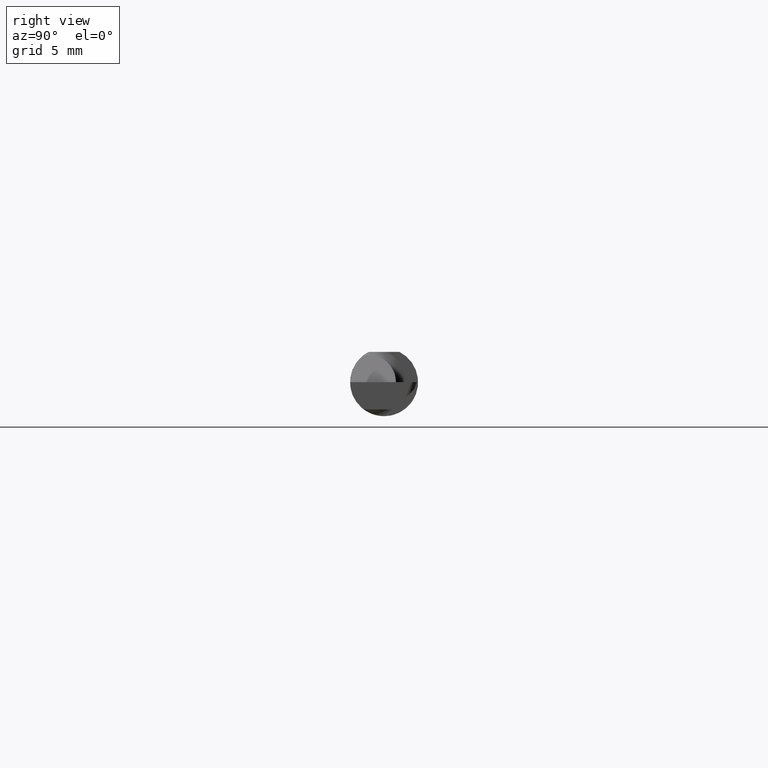
[diagram: clean part render]
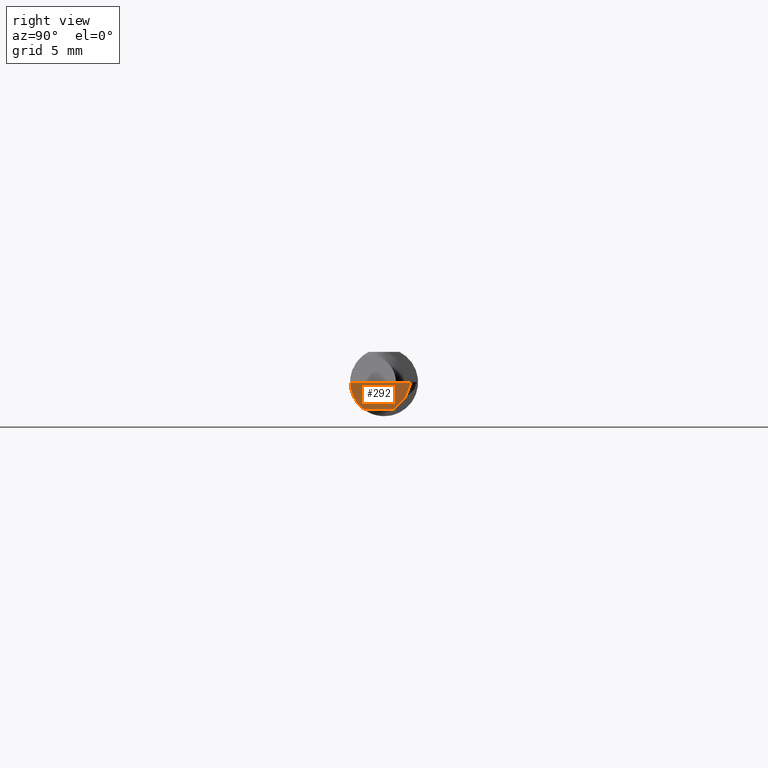
[diagram: same view with one face highlighted and labeled with its STEP entity id]
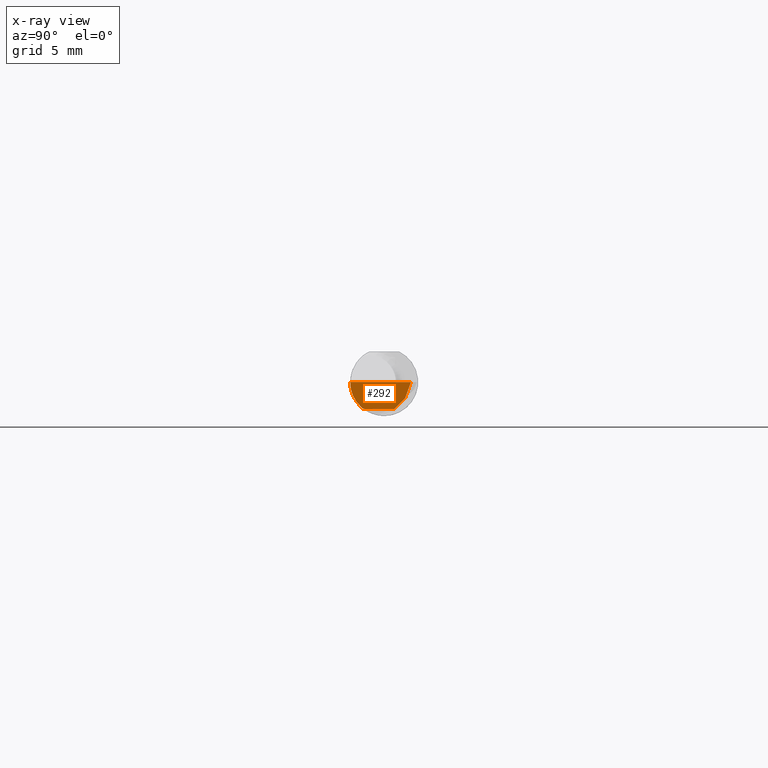
[diagram: x-ray of the same camera — body ghosted, the highlighted face saturated]
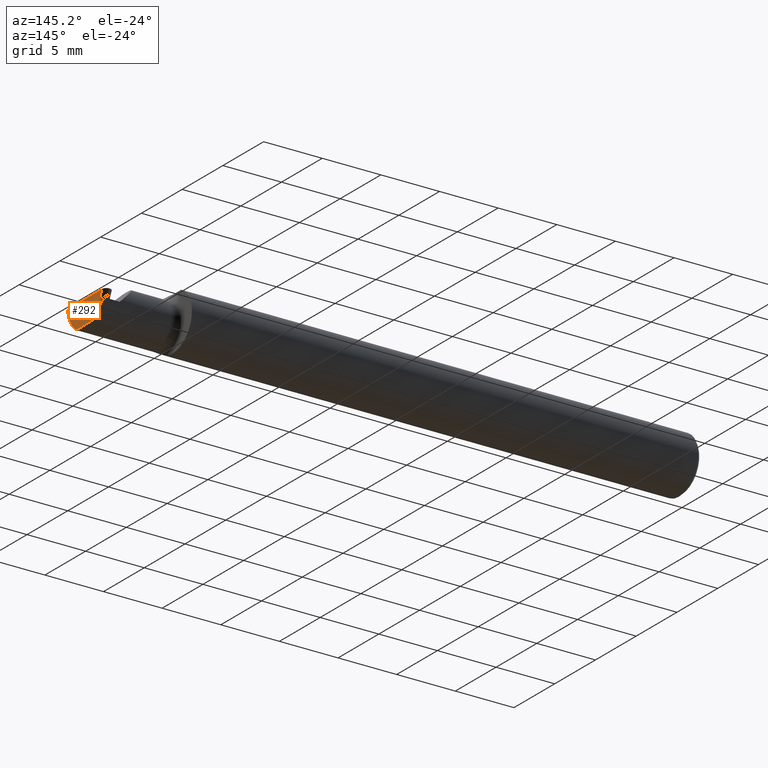
[diagram: same view with one face highlighted and labeled with its STEP entity id]
A machine part, right view. The second image highlights one B-rep face of the part: STEP entity #292.
The next image is the same camera in x-ray: the body ghosted, the highlighted face saturated — about 0% of this face is hidden behind the body in this view.
A second angle (auxiliary view) of the same face is appended — the face is thin or edge-on in the first view.
In plain terms, the highlighted planar face has unit normal (-0.9992, 0.0174, 0.0349).
Its self-contained STEP definition (entity closure, byte-faithful):
#13 = DIRECTION ( 'NONE',  ( 0.03490480639812536257, 0.000000000000000000, 0.9993906415863165194 ) ) ;
#32 = EDGE_LOOP ( 'NONE', ( #276, #62, #189, #657, #96, #672 ) ) ;
#62 = ORIENTED_EDGE ( 'NONE', *, *, #351, .T. ) ;
#64 = CARTESIAN_POINT ( 'NONE',  ( 1.995327814509989528, -0.04259999999999948550, -0.07500000000000002498 ) ) ;
#66 = LINE ( 'NONE', #553, #169 ) ;
#71 = DIRECTION ( 'NONE',  ( -0.9992386149554827179, 0.01744177490282298668, 0.03489949670250104552 ) ) ;
#86 = DIRECTION ( 'NONE',  ( -0.01745240643727633684, -0.9998476951563912696, 0.000000000000000000 ) ) ;
#95 = CARTESIAN_POINT ( 'NONE',  ( 1.996551145152111628, 0.02748456554894272708, -0.07500000000000002498 ) ) ;
#96 = ORIENTED_EDGE ( 'NONE', *, *, #204, .T. ) ;
#100 = CARTESIAN_POINT ( 'NONE',  ( 1.995165152206654691, -0.05300374992736034407, -0.07445783144524581454 ) ) ;
#128 = FACE_OUTER_BOUND ( 'NONE', #32, .T. ) ;
#136 = DIRECTION ( 'NONE',  ( -0.03701368837992437266, -0.7066222423871552083, -0.7066222423871628688 ) ) ;
#142 =( BOUNDED_CURVE ( )  B_SPLINE_CURVE ( 3, ( #155, #100, #534, #486 ),
 .UNSPECIFIED., .F., .T. ) 
 B_SPLINE_CURVE_WITH_KNOTS ( ( 4, 4 ),
 ( 0.2552020043920822379, 0.4634648172053437154 ),
 .UNSPECIFIED. ) 
 CURVE ( )  GEOMETRIC_REPRESENTATION_ITEM ( )  RATIONAL_B_SPLINE_CURVE ( ( 1.000000000000000000, 0.9963888149483992596, 0.9963888149483992596, 1.000000000000000000 ) ) 
 REPRESENTATION_ITEM ( '' )  );
#155 = CARTESIAN_POINT ( 'NONE',  ( 1.995113740419715231, -0.05810704225352097962, -0.07337936794867837287 ) ) ;
#160 = VERTEX_POINT ( 'NONE', #580 ) ;
#169 = VECTOR ( 'NONE', #136, 39.37007874015748143 ) ;
#189 = ORIENTED_EDGE ( 'NONE', *, *, #442, .T. ) ;
#204 = EDGE_CURVE ( 'NONE', #207, #345, #142, .T. ) ;
#207 = VERTEX_POINT ( 'NONE', #313 ) ;
#224 = DIRECTION ( 'NONE',  ( 0.03876062227022335910, 0.3417631236437464470, 0.9389864650134710500 ) ) ;
#235 = CARTESIAN_POINT ( 'NONE',  ( 1.999994460970140109, 0.07418895767924950368, 0.0002471205168746652800 ) ) ;
#271 = CARTESIAN_POINT ( 'NONE',  ( 1.999997674911211609, 0.07486755121428030624, 0.000000000000000000 ) ) ;
#276 = ORIENTED_EDGE ( 'NONE', *, *, #324, .F. ) ;
#278 = DIRECTION ( 'NONE',  ( -0.01745240643727633684, -0.9998476951563912696, 0.000000000000000000 ) ) ;
#284 = VERTEX_POINT ( 'NONE', #340 ) ;
#292 = ADVANCED_FACE ( 'NONE', ( #128 ), #494, .F. ) ;
#307 = EDGE_CURVE ( 'NONE', #392, #345, #664, .T. ) ;
#313 = CARTESIAN_POINT ( 'NONE',  ( 1.995113740419715231, -0.05810704225352097962, -0.07337936794867837287 ) ) ;
#324 = EDGE_CURVE ( 'NONE', #160, #392, #66, .T. ) ;
#330 = CARTESIAN_POINT ( 'NONE',  ( 1.995346537079453642, -0.08092595952420821026, -0.05530971394246255585 ) ) ;
#340 = CARTESIAN_POINT ( 'NONE',  ( 1.997057062866469668, -0.09360000000000001652, 0.000000000000000000 ) ) ;
#345 = VERTEX_POINT ( 'NONE', #64 ) ;
#351 = EDGE_CURVE ( 'NONE', #160, #395, #511, .T. ) ;
#382 = VECTOR ( 'NONE', #278, 39.37007874015748143 ) ;
#392 = VERTEX_POINT ( 'NONE', #95 ) ;
#395 = VERTEX_POINT ( 'NONE', #518 ) ;
#442 = EDGE_CURVE ( 'NONE', #395, #284, #572, .T. ) ;
#485 = VECTOR ( 'NONE', #224, 39.37007874015748854 ) ;
#486 = CARTESIAN_POINT ( 'NONE',  ( 1.995327814509989528, -0.04259999999999948550, -0.07500000000000002498 ) ) ;
#494 = PLANE ( 'NONE',  #588 ) ;
#511 = LINE ( 'NONE', #235, #485 ) ;
#518 = CARTESIAN_POINT ( 'NONE',  ( 1.999984260029693539, 0.07409901316683065176, 0.000000000000000000 ) ) ;
#520 = VECTOR ( 'NONE', #86, 39.37007874015748143 ) ;
#534 = CARTESIAN_POINT ( 'NONE',  ( 1.995236768857725718, -0.04781600192481491596, -0.07500000000000009437 ) ) ;
#547 = CARTESIAN_POINT ( 'NONE',  ( 1.996040470437265846, -0.09360000000000004428, -0.02910696448121683627 ) ) ;
#548 = CARTESIAN_POINT ( 'NONE',  ( 1.995364534437481741, -0.04049631676286997300, -0.07500000000000002498 ) ) ;
#553 = CARTESIAN_POINT ( 'NONE',  ( 1.996745115830019568, 0.03118762788560754812, -0.07129693766333514149 ) ) ;
#555 = CARTESIAN_POINT ( 'NONE',  ( 1.995113740419715231, -0.05810704225352097962, -0.07337936794867837287 ) ) ;
#563 = CARTESIAN_POINT ( 'NONE',  ( 1.999997674911211609, 0.07486755121428030624, 0.000000000000000000 ) ) ;
#572 = LINE ( 'NONE', #563, #520 ) ;
#580 = CARTESIAN_POINT ( 'NONE',  ( 1.998141998353699433, 0.05785528259492388886, -0.04462928295401852319 ) ) ;
#588 = AXIS2_PLACEMENT_3D ( 'NONE', #271, #71, #13 ) ;
#593 = EDGE_CURVE ( 'NONE', #207, #284, #689, .T. ) ;
#657 = ORIENTED_EDGE ( 'NONE', *, *, #593, .F. ) ;
#658 = CARTESIAN_POINT ( 'NONE',  ( 1.997057062866469668, -0.09360000000000001652, 0.000000000000000000 ) ) ;
#664 = LINE ( 'NONE', #548, #382 ) ;
#672 = ORIENTED_EDGE ( 'NONE', *, *, #307, .F. ) ;
#689 =( BOUNDED_CURVE ( )  B_SPLINE_CURVE ( 3, ( #555, #330, #547, #658 ),
 .UNSPECIFIED., .F., .T. ) 
 B_SPLINE_CURVE_WITH_KNOTS ( ( 4, 4 ),
 ( 0.2063001339125326294, 1.107331509589563945 ),
 .UNSPECIFIED. ) 
 CURVE ( )  GEOMETRIC_REPRESENTATION_ITEM ( )  RATIONAL_B_SPLINE_CURVE ( ( 1.000000000000000000, 0.9334817841311872089, 0.9334817841311872089, 1.000000000000000000 ) ) 
 REPRESENTATION_ITEM ( '' )  );